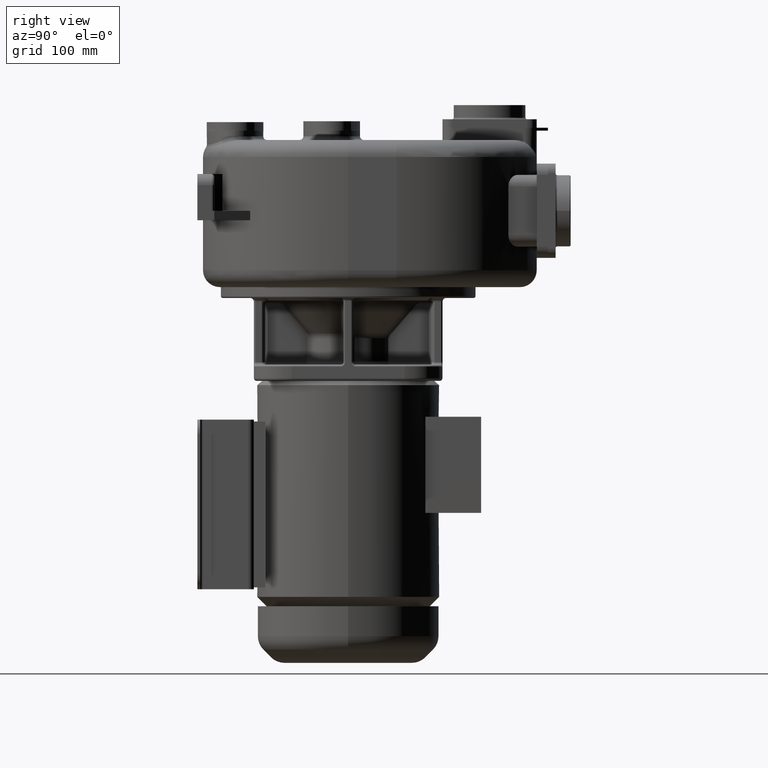
[diagram: clean part render]
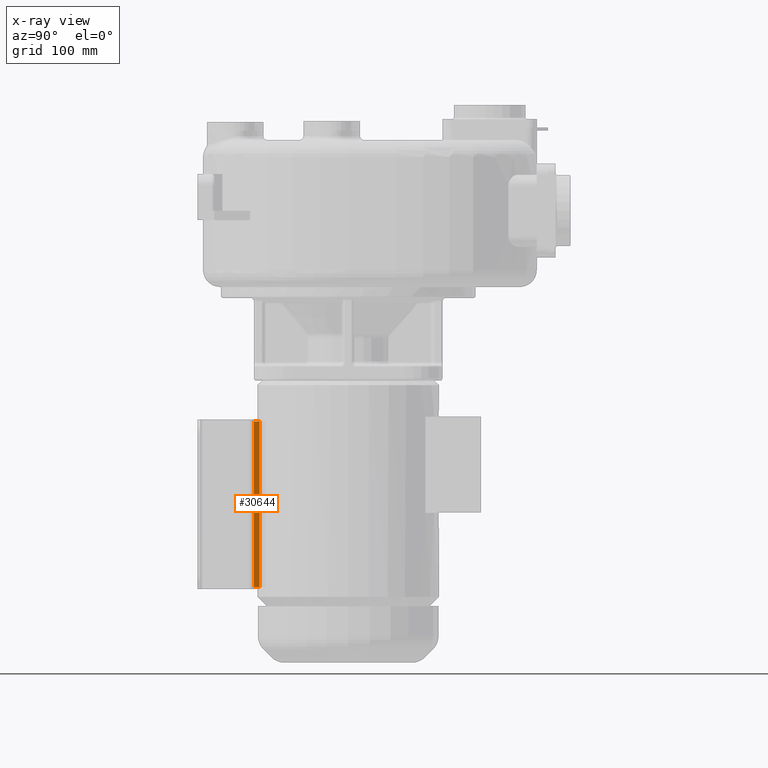
[diagram: x-ray — body ghosted, one internal face saturated and labeled with its STEP entity id]
A machine part, right view, then the same camera in x-ray: the body is ghosted and one INTERNAL B-rep face — a face not visible from any outside direction — is saturated and labeled: STEP entity #30644.
In plain terms, the highlighted planar face has unit normal (1, 0, 0).
Its self-contained STEP definition (entity closure, byte-faithful):
#12222=DIRECTION('',(0.E0,1.E0,0.E0));
#12223=VECTOR('',#12222,6.E0);
#12224=CARTESIAN_POINT('',(6.4E1,-1.E2,-2.21E2));
#12225=LINE('',#12224,#12223);
#12234=DIRECTION('',(0.E0,0.E0,1.E0));
#12235=VECTOR('',#12234,1.76E2);
#12236=CARTESIAN_POINT('',(6.4E1,-1.E2,-2.21E2));
#12237=LINE('',#12236,#12235);
#12250=DIRECTION('',(0.E0,0.E0,1.E0));
#12251=VECTOR('',#12250,1.76E2);
#12252=CARTESIAN_POINT('',(6.4E1,-9.4E1,-2.21E2));
#12253=LINE('',#12252,#12251);
#12374=DIRECTION('',(0.E0,1.E0,0.E0));
#12375=VECTOR('',#12374,6.E0);
#12376=CARTESIAN_POINT('',(6.4E1,-1.E2,-4.5E1));
#12377=LINE('',#12376,#12375);
#13316=CARTESIAN_POINT('',(6.4E1,-9.4E1,-2.21E2));
#13317=VERTEX_POINT('',#13316);
#13320=CARTESIAN_POINT('',(6.4E1,-9.4E1,-4.5E1));
#13321=VERTEX_POINT('',#13320);
#13524=CARTESIAN_POINT('',(6.4E1,-1.E2,-2.21E2));
#13525=VERTEX_POINT('',#13524);
#13528=CARTESIAN_POINT('',(6.4E1,-1.E2,-4.5E1));
#13529=VERTEX_POINT('',#13528);
#30631=CARTESIAN_POINT('',(6.4E1,-1.E2,-2.21E2));
#30632=DIRECTION('',(1.E0,0.E0,0.E0));
#30633=DIRECTION('',(0.E0,0.E0,1.E0));
#30634=AXIS2_PLACEMENT_3D('',#30631,#30632,#30633);
#30635=PLANE('',#30634);
#30636=ORIENTED_EDGE('',*,*,#30606,.F.);
#30637=ORIENTED_EDGE('',*,*,#30595,.T.);
#30639=ORIENTED_EDGE('',*,*,#30638,.T.);
#30641=ORIENTED_EDGE('',*,*,#30640,.F.);
#30642=EDGE_LOOP('',(#30636,#30637,#30639,#30641));
#30643=FACE_OUTER_BOUND('',#30642,.F.);
#30644=ADVANCED_FACE('',(#30643),#30635,.F.);
#30595=EDGE_CURVE('',#13525,#13317,#12225,.T.);
#30606=EDGE_CURVE('',#13525,#13529,#12237,.T.);
#30638=EDGE_CURVE('',#13317,#13321,#12253,.T.);
#30640=EDGE_CURVE('',#13529,#13321,#12377,.T.);